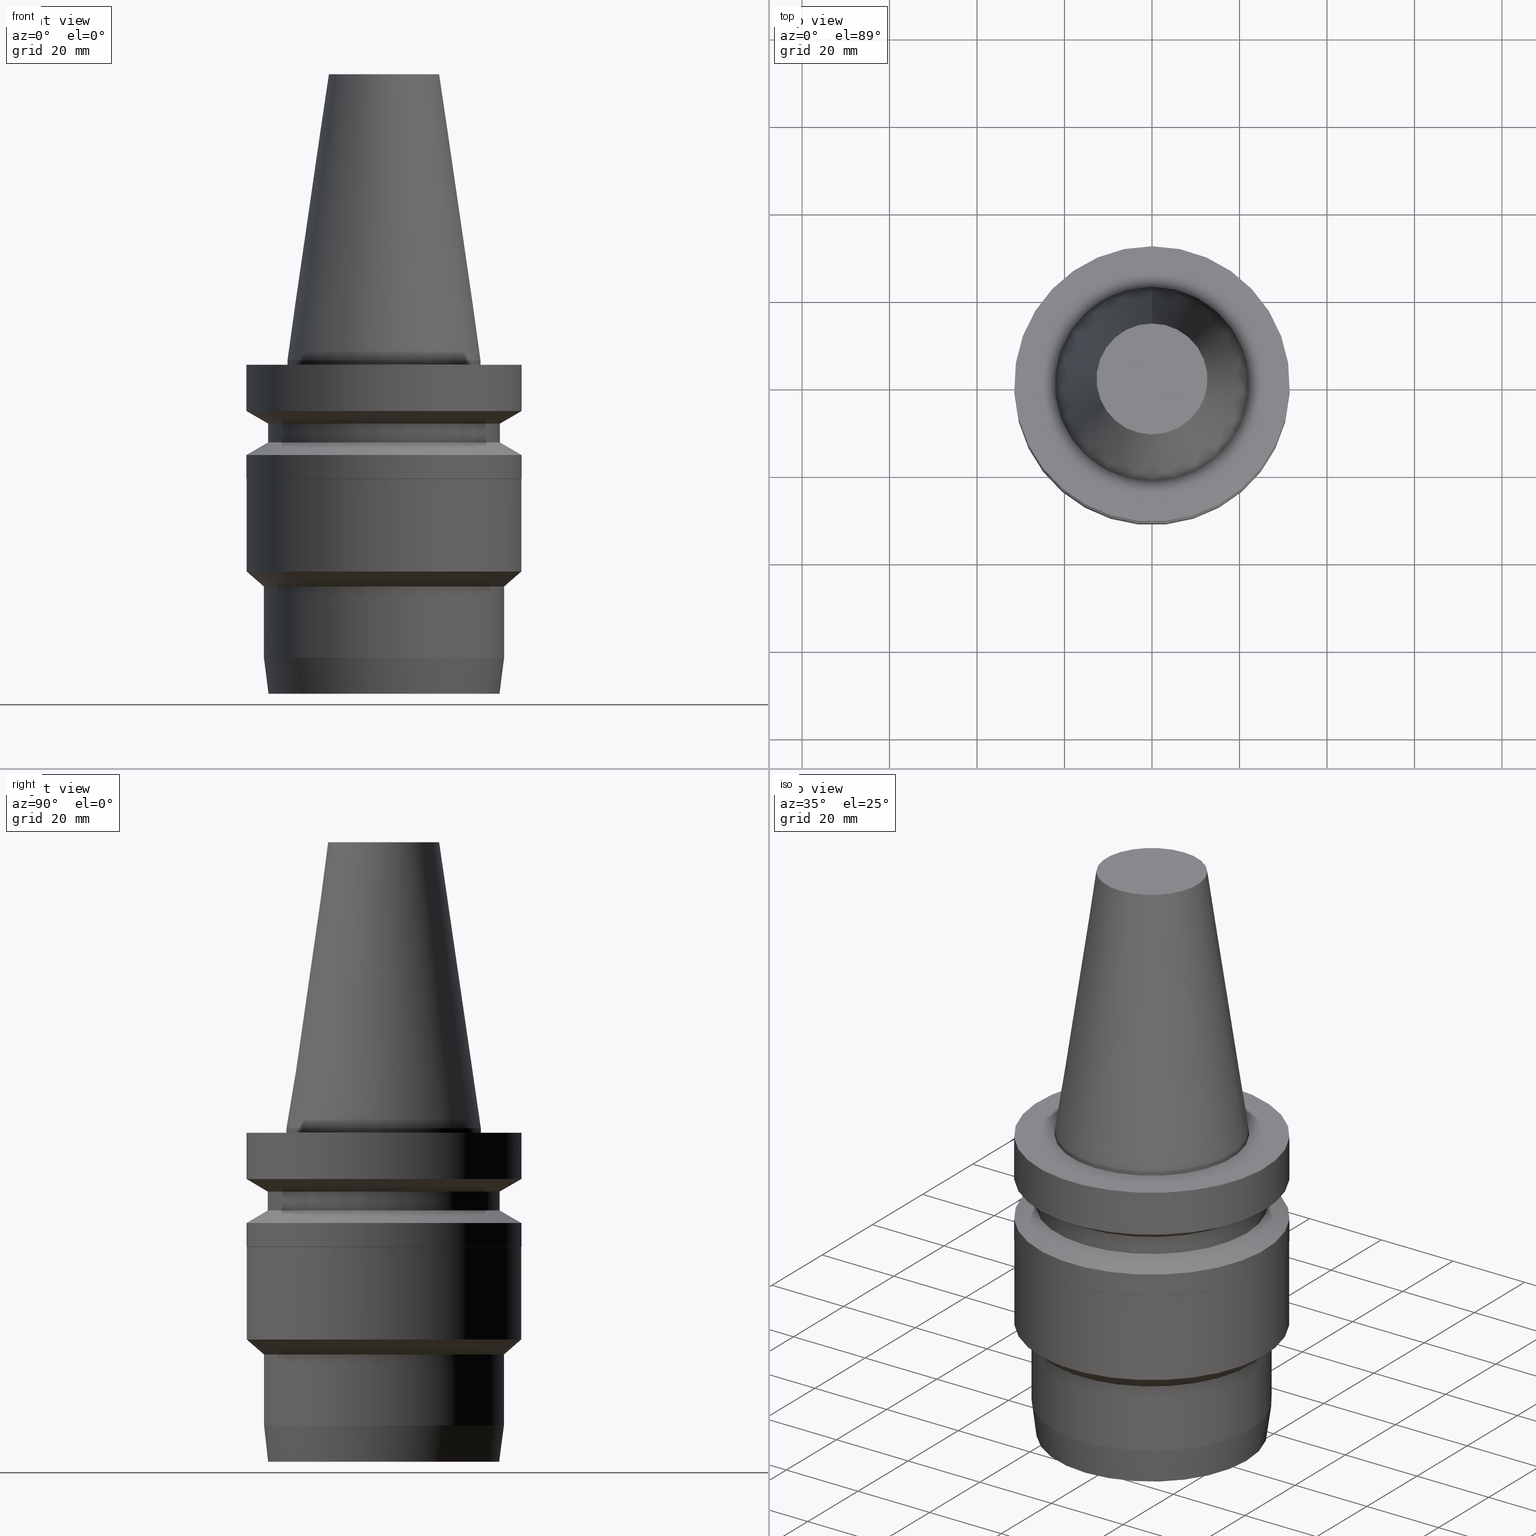
[diagram: canonical four-view strip — front | top / right | iso, engineering-drawing reading convention]
A machine part, canonical four-view strip (front | top / right | iso — engineering-drawing reading convention). The complete STEP part file that produces these views, byte-faithful:
ISO-10303-21;
HEADER;
FILE_DESCRIPTION((''),'1');
FILE_NAME('V:/90_\X2\53D65F9730C730FC30BF\X0\/00_\X2\6DE18DEF30C730FC30BF\X0\/ALL/BBT-BKUS\X2\FF76FF80FF9BFF78FF9E752852A05DE556F3\X0\201801/BBT40-HDC/BBT40-HDC1.000-3.stp','2018-02-07T05:21:27',(''),(''),'Spatial Interop R21 SP3','Kubotek KeyCreator 2011 V10.0.2 (22737)',' ');
FILE_SCHEMA(('automotive_design'));
ENDSEC;
DATA;
#1=MECHANICAL_DESIGN_GEOMETRIC_PRESENTATION_REPRESENTATION(' ',(#10,#11,#12,#13,#14,#15,#16,#17,#18,#19,#20,#21,#22,#23,#24,#25,#26,#27,#28,#29,#30,#31,#32,#33,#34,#35,#36,#37,#38,#39),#6);
#2=PRODUCT_DEFINITION_CONTEXT('',#40,'design');
#3=APPLICATION_PROTOCOL_DEFINITION('INTERNATIONAL STANDARD','automotive_design',1994,#40);
#4=PRODUCT_CATEGORY_RELATIONSHIP('NONE','NONE',#41,#42);
#5=SHAPE_DEFINITION_REPRESENTATION(#43,#44);
#6= (GEOMETRIC_REPRESENTATION_CONTEXT(3)GLOBAL_UNCERTAINTY_ASSIGNED_CONTEXT((#47))GLOBAL_UNIT_ASSIGNED_CONTEXT((#49,#50,#51))REPRESENTATION_CONTEXT('NONE','WORKSPACE'));
#10=STYLED_ITEM('',(#53,#54),#55);
#11=STYLED_ITEM('',(#56),#57);
#12=STYLED_ITEM('',(#58,#59),#60);
#13=STYLED_ITEM('',(#61),#62);
#14=STYLED_ITEM('',(#63,#64),#65);
#15=STYLED_ITEM('',(#66,#67),#68);
#16=STYLED_ITEM('',(#69,#70),#71);
#17=STYLED_ITEM('',(#72),#73);
#18=STYLED_ITEM('',(#74,#75),#76);
#19=STYLED_ITEM('',(#77,#78),#79);
#20=STYLED_ITEM('',(#80,#81),#82);
#21=STYLED_ITEM('',(#83,#84),#85);
#22=STYLED_ITEM('',(#86),#87);
#23=STYLED_ITEM('',(#88),#89);
#24=STYLED_ITEM('',(#90),#91);
#25=STYLED_ITEM('',(#92,#93),#94);
#26=STYLED_ITEM('',(#95),#96);
#27=STYLED_ITEM('',(#97),#98);
#28=STYLED_ITEM('',(#99),#100);
#29=STYLED_ITEM('',(#101,#102),#103);
#30=STYLED_ITEM('',(#104,#105),#106);
#31=STYLED_ITEM('',(#107),#108);
#32=STYLED_ITEM('',(#109),#110);
#33=STYLED_ITEM('',(#111),#112);
#34=STYLED_ITEM('',(#113),#114);
#35=STYLED_ITEM('',(#115,#116),#117);
#36=STYLED_ITEM('',(#118,#119),#120);
#37=STYLED_ITEM('',(#121,#122),#123);
#38=STYLED_ITEM('',(#124,#125),#126);
#39=STYLED_ITEM('',(#127),#128);
#40=APPLICATION_CONTEXT(' ');
#41=PRODUCT_CATEGORY('part','NONE');
#42=PRODUCT_RELATED_PRODUCT_CATEGORY('detail',' ',(#129));
#43=PRODUCT_DEFINITION_SHAPE('NONE','NONE',#130);
#44=ADVANCED_BREP_SHAPE_REPRESENTATION('Unnamed[1]',(#71,#131),#6);
#47=UNCERTAINTY_MEASURE_WITH_UNIT(LENGTH_MEASURE(1.0E-006),#49,'','');
#49= (CONVERSION_BASED_UNIT('MILLIMETRE',#134)LENGTH_UNIT()NAMED_UNIT(#137));
#50= (NAMED_UNIT(#139)PLANE_ANGLE_UNIT()SI_UNIT($,.RADIAN.));
#51= (NAMED_UNIT(#139)SOLID_ANGLE_UNIT()SI_UNIT($,.STERADIAN.));
#53=PRESENTATION_STYLE_ASSIGNMENT((#145));
#54=PRESENTATION_STYLE_ASSIGNMENT((#146));
#55=ADVANCED_FACE('Unnamed[1]',(#147,#148),#149,.T.);
#56=PRESENTATION_STYLE_ASSIGNMENT((#150));
#57=EDGE_CURVE('Unnamed[1]',#151,#151,#152,.T.);
#58=PRESENTATION_STYLE_ASSIGNMENT((#153));
#59=PRESENTATION_STYLE_ASSIGNMENT((#154));
#60=ADVANCED_FACE('Unnamed[1]',(#155,#156),#157,.T.);
#61=PRESENTATION_STYLE_ASSIGNMENT((#158));
#62=EDGE_CURVE('Unnamed[1]',#159,#159,#160,.T.);
#63=PRESENTATION_STYLE_ASSIGNMENT((#161));
#64=PRESENTATION_STYLE_ASSIGNMENT((#162));
#65=ADVANCED_FACE('Unnamed[1]',(#163,#164),#165,.T.);
#66=PRESENTATION_STYLE_ASSIGNMENT((#166));
#67=PRESENTATION_STYLE_ASSIGNMENT((#167));
#68=ADVANCED_FACE('Unnamed[1]',(#168,#169),#170,.T.);
#69=PRESENTATION_STYLE_ASSIGNMENT((#171));
#70=PRESENTATION_STYLE_ASSIGNMENT((#172));
#71=MANIFOLD_SOLID_BREP('Unnamed[1]',#173);
#72=PRESENTATION_STYLE_ASSIGNMENT((#174));
#73=EDGE_CURVE('Unnamed[1]',#175,#175,#176,.T.);
#74=PRESENTATION_STYLE_ASSIGNMENT((#177));
#75=PRESENTATION_STYLE_ASSIGNMENT((#178));
#76=ADVANCED_FACE('Unnamed[1]',(#179),#180,.T.);
#77=PRESENTATION_STYLE_ASSIGNMENT((#181));
#78=PRESENTATION_STYLE_ASSIGNMENT((#182));
#79=ADVANCED_FACE('Unnamed[1]',(#183,#184),#185,.T.);
#80=PRESENTATION_STYLE_ASSIGNMENT((#186));
#81=PRESENTATION_STYLE_ASSIGNMENT((#187));
#82=ADVANCED_FACE('Unnamed[1]',(#188,#189),#190,.T.);
#83=PRESENTATION_STYLE_ASSIGNMENT((#191));
#84=PRESENTATION_STYLE_ASSIGNMENT((#192));
#85=ADVANCED_FACE('Unnamed[1]',(#193,#194),#195,.T.);
#86=PRESENTATION_STYLE_ASSIGNMENT((#196));
#87=EDGE_CURVE('Unnamed[1]',#197,#197,#198,.T.);
#88=PRESENTATION_STYLE_ASSIGNMENT((#199));
#89=EDGE_CURVE('Unnamed[1]',#200,#200,#201,.T.);
#90=PRESENTATION_STYLE_ASSIGNMENT((#202));
#91=EDGE_CURVE('Unnamed[1]',#203,#203,#204,.T.);
#92=PRESENTATION_STYLE_ASSIGNMENT((#205));
#93=PRESENTATION_STYLE_ASSIGNMENT((#206));
#94=ADVANCED_FACE('Unnamed[1]',(#207,#208),#209,.T.);
#95=PRESENTATION_STYLE_ASSIGNMENT((#210));
#96=EDGE_CURVE('Unnamed[1]',#211,#211,#212,.T.);
#97=PRESENTATION_STYLE_ASSIGNMENT((#213));
#98=EDGE_CURVE('Unnamed[1]',#214,#214,#215,.T.);
#99=PRESENTATION_STYLE_ASSIGNMENT((#216));
#100=EDGE_CURVE('Unnamed[1]',#217,#217,#218,.T.);
#101=PRESENTATION_STYLE_ASSIGNMENT((#219));
#102=PRESENTATION_STYLE_ASSIGNMENT((#220));
#103=ADVANCED_FACE('Unnamed[1]',(#221,#222),#223,.T.);
#104=PRESENTATION_STYLE_ASSIGNMENT((#224));
#105=PRESENTATION_STYLE_ASSIGNMENT((#225));
#106=ADVANCED_FACE('Unnamed[1]',(#226,#227),#228,.T.);
#107=PRESENTATION_STYLE_ASSIGNMENT((#229));
#108=EDGE_CURVE('Unnamed[1]',#230,#230,#231,.T.);
#109=PRESENTATION_STYLE_ASSIGNMENT((#232));
#110=EDGE_CURVE('Unnamed[1]',#233,#233,#234,.T.);
#111=PRESENTATION_STYLE_ASSIGNMENT((#235));
#112=EDGE_CURVE('Unnamed[1]',#236,#236,#237,.T.);
#113=PRESENTATION_STYLE_ASSIGNMENT((#238));
#114=EDGE_CURVE('Unnamed[1]',#239,#239,#240,.T.);
#115=PRESENTATION_STYLE_ASSIGNMENT((#241));
#116=PRESENTATION_STYLE_ASSIGNMENT((#242));
#117=ADVANCED_FACE('Unnamed[1]',(#243,#244),#245,.T.);
#118=PRESENTATION_STYLE_ASSIGNMENT((#246));
#119=PRESENTATION_STYLE_ASSIGNMENT((#247));
#120=ADVANCED_FACE('Unnamed[1]',(#248),#249,.T.);
#121=PRESENTATION_STYLE_ASSIGNMENT((#250));
#122=PRESENTATION_STYLE_ASSIGNMENT((#251));
#123=ADVANCED_FACE('Unnamed[1]',(#252,#253),#254,.T.);
#124=PRESENTATION_STYLE_ASSIGNMENT((#255));
#125=PRESENTATION_STYLE_ASSIGNMENT((#256));
#126=ADVANCED_FACE('Unnamed[1]',(#257,#258),#259,.T.);
#127=PRESENTATION_STYLE_ASSIGNMENT((#260));
#128=EDGE_CURVE('Unnamed[1]',#261,#261,#262,.T.);
#129=PRODUCT('Unnamed[1]','Unnamed[1]','PART-Unnamed[1]-DESC',(#263));
#130=PRODUCT_DEFINITION('NONE','NONE',#264,#2);
#131=AXIS2_PLACEMENT_3D('',#265,#266,#267);
#134=LENGTH_MEASURE_WITH_UNIT(LENGTH_MEASURE(1.0),#268);
#137=DIMENSIONAL_EXPONENTS(1.0,0.0,0.0,0.0,0.0,0.0,0.0);
#139=DIMENSIONAL_EXPONENTS(0.0,0.0,0.0,0.0,0.0,0.0,0.0);
#145=SURFACE_STYLE_USAGE(.BOTH.,#269);
#146=CURVE_STYLE('',#270,POSITIVE_LENGTH_MEASURE(1000.0),#271);
#147=FACE_BOUND('',#272,.T.);
#148=FACE_BOUND('',#273,.T.);
#149=CONICAL_SURFACE('',#274,29.0000000000004,1.04719755119651);
#150=CURVE_STYLE('',#275,POSITIVE_LENGTH_MEASURE(1000.0),#276);
#151=VERTEX_POINT('',#277);
#152=CIRCLE('',#278,26.5);
#153=SURFACE_STYLE_USAGE(.BOTH.,#279);
#154=CURVE_STYLE('',#280,POSITIVE_LENGTH_MEASURE(1000.0),#281);
#155=FACE_BOUND('',#282,.T.);
#156=FACE_BOUND('',#283,.T.);
#157=CONICAL_SURFACE('',#284,31.4749999999866,0.785398163425763);
#158=CURVE_STYLE('',#285,POSITIVE_LENGTH_MEASURE(1000.0),#286);
#159=VERTEX_POINT('',#287);
#160=CIRCLE('',#288,26.4085690956189);
#161=SURFACE_STYLE_USAGE(.BOTH.,#289);
#162=CURVE_STYLE('',#290,POSITIVE_LENGTH_MEASURE(1000.0),#291);
#163=FACE_BOUND('',#292,.T.);
#164=FACE_BOUND('',#293,.T.);
#165=CYLINDRICAL_SURFACE('',#294,22.225);
#166=SURFACE_STYLE_USAGE(.BOTH.,#295);
#167=CURVE_STYLE('',#296,POSITIVE_LENGTH_MEASURE(1000.0),#297);
#168=FACE_BOUND('',#298,.T.);
#169=FACE_BOUND('',#299,.T.);
#170=CONICAL_SURFACE('',#300,17.4562500000001,0.144812498238936);
#171=SURFACE_STYLE_USAGE(.BOTH.,#301);
#172=CURVE_STYLE('',#302,POSITIVE_LENGTH_MEASURE(1000.0),#303);
#173=CLOSED_SHELL('',(#120,#68,#65,#123,#79,#106,#126,#55,#117,#60,#82,#103,#94,#85,#76));
#174=CURVE_STYLE('',#304,POSITIVE_LENGTH_MEASURE(1000.0),#305);
#175=VERTEX_POINT('',#306);
#176=CIRCLE('',#307,31.4499999999729);
#177=SURFACE_STYLE_USAGE(.BOTH.,#308);
#178=CURVE_STYLE('',#309,POSITIVE_LENGTH_MEASURE(1000.0),#310);
#179=FACE_OUTER_BOUND('',#311,.T.);
#180=PLANE('',#312);
#181=SURFACE_STYLE_USAGE(.BOTH.,#313);
#182=CURVE_STYLE('',#314,POSITIVE_LENGTH_MEASURE(1000.0),#315);
#183=FACE_BOUND('',#316,.T.);
#184=FACE_BOUND('',#317,.T.);
#185=CYLINDRICAL_SURFACE('',#318,31.5);
#186=SURFACE_STYLE_USAGE(.BOTH.,#319);
#187=CURVE_STYLE('',#320,POSITIVE_LENGTH_MEASURE(1000.0),#321);
#188=FACE_BOUND('',#322,.T.);
#189=FACE_BOUND('',#323,.T.);
#190=CYLINDRICAL_SURFACE('',#324,31.4499999999873);
#191=SURFACE_STYLE_USAGE(.BOTH.,#325);
#192=CURVE_STYLE('',#326,POSITIVE_LENGTH_MEASURE(1000.0),#327);
#193=FACE_BOUND('',#328,.T.);
#194=FACE_BOUND('',#329,.T.);
#195=CONICAL_SURFACE('',#330,26.9542845478042,0.130899693899131);
#196=CURVE_STYLE('',#331,POSITIVE_LENGTH_MEASURE(1000.0),#332);
#197=VERTEX_POINT('',#333);
#198=CIRCLE('',#334,22.225);
#199=CURVE_STYLE('',#335,POSITIVE_LENGTH_MEASURE(1000.0),#336);
#200=VERTEX_POINT('',#337);
#201=CIRCLE('',#338,31.4999999999997);
#202=CURVE_STYLE('',#339,POSITIVE_LENGTH_MEASURE(1000.0),#340);
#203=VERTEX_POINT('',#341);
#204=CIRCLE('',#342,26.4999999999994);
#205=SURFACE_STYLE_USAGE(.BOTH.,#343);
#206=CURVE_STYLE('',#344,POSITIVE_LENGTH_MEASURE(1000.0),#345);
#207=FACE_BOUND('',#346,.T.);
#208=FACE_BOUND('',#347,.T.);
#209=CYLINDRICAL_SURFACE('',#348,27.4999999999893);
#210=CURVE_STYLE('',#349,POSITIVE_LENGTH_MEASURE(1000.0),#350);
#211=VERTEX_POINT('',#351);
#212=CIRCLE('',#352,31.5000000000004);
#213=CURVE_STYLE('',#353,POSITIVE_LENGTH_MEASURE(1000.0),#354);
#214=VERTEX_POINT('',#355);
#215=CIRCLE('',#356,31.5000000000004);
#216=CURVE_STYLE('',#357,POSITIVE_LENGTH_MEASURE(1000.0),#358);
#217=VERTEX_POINT('',#359);
#218=CIRCLE('',#360,27.4999999999892);
#219=SURFACE_STYLE_USAGE(.BOTH.,#361);
#220=CURVE_STYLE('',#362,POSITIVE_LENGTH_MEASURE(1000.0),#363);
#221=FACE_BOUND('',#364,.T.);
#222=FACE_BOUND('',#365,.T.);
#223=CONICAL_SURFACE('',#366,29.4749999999954,0.854987653870736);
#224=SURFACE_STYLE_USAGE(.BOTH.,#367);
#225=CURVE_STYLE('',#368,POSITIVE_LENGTH_MEASURE(1000.0),#369);
#226=FACE_BOUND('',#370,.T.);
#227=FACE_BOUND('',#371,.T.);
#228=CONICAL_SURFACE('',#372,28.9999999999999,1.04719755119657);
#229=CURVE_STYLE('',#373,POSITIVE_LENGTH_MEASURE(1000.0),#374);
#230=VERTEX_POINT('',#375);
#231=CIRCLE('',#376,31.5000000000007);
#232=CURVE_STYLE('',#377,POSITIVE_LENGTH_MEASURE(1000.0),#378);
#233=VERTEX_POINT('',#379);
#234=CIRCLE('',#380,12.6875000000001);
#235=CURVE_STYLE('',#381,POSITIVE_LENGTH_MEASURE(1000.0),#382);
#236=VERTEX_POINT('',#383);
#237=CIRCLE('',#384,22.225);
#238=CURVE_STYLE('',#385,POSITIVE_LENGTH_MEASURE(1000.0),#386);
#239=VERTEX_POINT('',#387);
#240=CIRCLE('',#388,31.4500000000017);
#241=SURFACE_STYLE_USAGE(.BOTH.,#389);
#242=CURVE_STYLE('',#390,POSITIVE_LENGTH_MEASURE(1000.0),#391);
#243=FACE_BOUND('',#392,.T.);
#244=FACE_BOUND('',#393,.T.);
#245=CYLINDRICAL_SURFACE('',#394,31.5000000000005);
#246=SURFACE_STYLE_USAGE(.BOTH.,#395);
#247=CURVE_STYLE('',#396,POSITIVE_LENGTH_MEASURE(1000.0),#397);
#248=FACE_OUTER_BOUND('',#398,.T.);
#249=PLANE('',#399);
#250=SURFACE_STYLE_USAGE(.BOTH.,#400);
#251=CURVE_STYLE('',#401,POSITIVE_LENGTH_MEASURE(1000.0),#402);
#252=FACE_OUTER_BOUND('',#403,.T.);
#253=FACE_BOUND('',#404,.T.);
#254=PLANE('',#405);
#255=SURFACE_STYLE_USAGE(.BOTH.,#406);
#256=CURVE_STYLE('',#407,POSITIVE_LENGTH_MEASURE(1000.0),#408);
#257=FACE_BOUND('',#409,.T.);
#258=FACE_BOUND('',#410,.T.);
#259=CYLINDRICAL_SURFACE('',#411,26.4999999999997);
#260=CURVE_STYLE('',#412,POSITIVE_LENGTH_MEASURE(1000.0),#413);
#261=VERTEX_POINT('',#414);
#262=CIRCLE('',#415,27.4999999999895);
#263=PRODUCT_CONTEXT('',#40,'mechanical');
#264=PRODUCT_DEFINITION_FORMATION_WITH_SPECIFIED_SOURCE(' ','NONE',#129,.NOT_KNOWN.);
#265=CARTESIAN_POINT('',(0.0,0.0,0.0));
#266=DIRECTION('',(0.0,0.0,1.0));
#267=DIRECTION('',(1.0,0.0,0.0));
#268= (NAMED_UNIT(#137)LENGTH_UNIT()SI_UNIT(.MILLI.,.METRE.));
#269=SURFACE_SIDE_STYLE('',(#417));
#270=DRAUGHTING_PRE_DEFINED_CURVE_FONT('continuous');
#271=COLOUR_RGB('',0.0,1.0,0.0);
#272=EDGE_LOOP('',(#418));
#273=EDGE_LOOP('',(#419));
#274=AXIS2_PLACEMENT_3D('',#420,#421,#422);
#275=DRAUGHTING_PRE_DEFINED_CURVE_FONT('continuous');
#276=COLOUR_RGB('',0.0,1.0,0.0);
#277=CARTESIAN_POINT('',(1.1479681728942E-015,26.5,-18.7477430013855));
#278=AXIS2_PLACEMENT_3D('',#423,#424,#425);
#279=SURFACE_SIDE_STYLE('',(#426));
#280=DRAUGHTING_PRE_DEFINED_CURVE_FONT('continuous');
#281=COLOUR_RGB('',0.0,1.0,0.0);
#282=EDGE_LOOP('',(#427));
#283=EDGE_LOOP('',(#428));
#284=AXIS2_PLACEMENT_3D('',#429,#430,#431);
#285=DRAUGHTING_PRE_DEFINED_CURVE_FONT('continuous');
#286=COLOUR_RGB('',0.0,1.0,0.0);
#287=CARTESIAN_POINT('',(4.66590430475143E-015,26.4085690956189,-76.2000000000003));
#288=AXIS2_PLACEMENT_3D('',#432,#433,#434);
#289=SURFACE_SIDE_STYLE('',(#435));
#290=DRAUGHTING_PRE_DEFINED_CURVE_FONT('continuous');
#291=COLOUR_RGB('',0.0,1.0,0.0);
#292=EDGE_LOOP('',(#436));
#293=EDGE_LOOP('',(#437));
#294=AXIS2_PLACEMENT_3D('',#438,#439,#440);
#295=SURFACE_SIDE_STYLE('',(#441));
#296=DRAUGHTING_PRE_DEFINED_CURVE_FONT('continuous');
#297=COLOUR_RGB('',0.0,1.0,0.0);
#298=EDGE_LOOP('',(#442));
#299=EDGE_LOOP('',(#443));
#300=AXIS2_PLACEMENT_3D('',#444,#445,#446);
#301=SURFACE_SIDE_STYLE('',(#447));
#302=DRAUGHTING_PRE_DEFINED_CURVE_FONT('continuous');
#303=COLOUR_RGB('',0.0,1.0,0.0);
#304=DRAUGHTING_PRE_DEFINED_CURVE_FONT('continuous');
#305=COLOUR_RGB('',0.0,1.0,0.0);
#306=CARTESIAN_POINT('',(1.65633479584536E-015,31.4499999999729,-27.0499999999765));
#307=AXIS2_PLACEMENT_3D('',#448,#449,#450);
#308=SURFACE_SIDE_STYLE('',(#451));
#309=DRAUGHTING_PRE_DEFINED_CURVE_FONT('continuous');
#310=COLOUR_RGB('',0.0,1.0,0.0);
#311=EDGE_LOOP('',(#452));
#312=AXIS2_PLACEMENT_3D('',#453,#454,#455);
#313=SURFACE_SIDE_STYLE('',(#456));
#314=DRAUGHTING_PRE_DEFINED_CURVE_FONT('continuous');
#315=COLOUR_RGB('',0.0,1.0,0.0);
#316=EDGE_LOOP('',(#457));
#317=EDGE_LOOP('',(#458));
#318=AXIS2_PLACEMENT_3D('',#459,#460,#461);
#319=SURFACE_SIDE_STYLE('',(#462));
#320=DRAUGHTING_PRE_DEFINED_CURVE_FONT('continuous');
#321=COLOUR_RGB('',0.0,1.0,0.0);
#322=EDGE_LOOP('',(#463));
#323=EDGE_LOOP('',(#464));
#324=AXIS2_PLACEMENT_3D('',#465,#466,#467);
#325=SURFACE_SIDE_STYLE('',(#468));
#326=DRAUGHTING_PRE_DEFINED_CURVE_FONT('continuous');
#327=COLOUR_RGB('',0.0,1.0,0.0);
#328=EDGE_LOOP('',(#469));
#329=EDGE_LOOP('',(#470));
#330=AXIS2_PLACEMENT_3D('',#471,#472,#473);
#331=DRAUGHTING_PRE_DEFINED_CURVE_FONT('continuous');
#332=COLOUR_RGB('',0.0,1.0,0.0);
#333=CARTESIAN_POINT('',(6.12323399573622E-017,22.2250000000001,-0.999999999999912));
#334=AXIS2_PLACEMENT_3D('',#474,#475,#476);
#335=DRAUGHTING_PRE_DEFINED_CURVE_FONT('continuous');
#336=COLOUR_RGB('',0.0,1.0,0.0);
#337=CARTESIAN_POINT('',(6.12323399573568E-017,31.4999999999997,-0.999999999999825));
#338=AXIS2_PLACEMENT_3D('',#477,#478,#479);
#339=DRAUGHTING_PRE_DEFINED_CURVE_FONT('continuous');
#340=COLOUR_RGB('',0.0,1.0,0.0);
#341=CARTESIAN_POINT('',(8.8494551369045E-016,26.4999999999995,-14.4522569986152));
#342=AXIS2_PLACEMENT_3D('',#480,#481,#482);
#343=SURFACE_SIDE_STYLE('',(#483));
#344=DRAUGHTING_PRE_DEFINED_CURVE_FONT('continuous');
#345=COLOUR_RGB('',0.0,1.0,0.0);
#346=EDGE_LOOP('',(#484));
#347=EDGE_LOOP('',(#485));
#348=AXIS2_PLACEMENT_3D('',#486,#487,#488);
#349=DRAUGHTING_PRE_DEFINED_CURVE_FONT('continuous');
#350=COLOUR_RGB('',0.0,1.0,0.0);
#351=CARTESIAN_POINT('',(1.65327317884598E-015,31.5000000000004,-26.9999999999519));
#352=AXIS2_PLACEMENT_3D('',#489,#490,#491);
#353=DRAUGHTING_PRE_DEFINED_CURVE_FONT('continuous');
#354=COLOUR_RGB('',0.0,1.0,0.0);
#355=CARTESIAN_POINT('',(7.08182973902924E-016,31.5000000000004,-11.5655056526664));
#356=AXIS2_PLACEMENT_3D('',#492,#493,#494);
#357=DRAUGHTING_PRE_DEFINED_CURVE_FONT('continuous');
#358=COLOUR_RGB('',0.0,1.0,0.0);
#359=CARTESIAN_POINT('',(3.16527234737427E-015,27.4999999999892,-51.6928203230197));
#360=AXIS2_PLACEMENT_3D('',#495,#496,#497);
#361=SURFACE_SIDE_STYLE('',(#498));
#362=DRAUGHTING_PRE_DEFINED_CURVE_FONT('continuous');
#363=COLOUR_RGB('',0.0,1.0,0.0);
#364=EDGE_LOOP('',(#499));
#365=EDGE_LOOP('',(#500));
#366=AXIS2_PLACEMENT_3D('',#501,#502,#503);
#367=SURFACE_SIDE_STYLE('',(#504));
#368=DRAUGHTING_PRE_DEFINED_CURVE_FONT('continuous');
#369=COLOUR_RGB('',0.0,1.0,0.0);
#370=EDGE_LOOP('',(#505));
#371=EDGE_LOOP('',(#506));
#372=AXIS2_PLACEMENT_3D('',#507,#508,#509);
#373=DRAUGHTING_PRE_DEFINED_CURVE_FONT('continuous');
#374=COLOUR_RGB('',0.0,1.0,0.0);
#375=CARTESIAN_POINT('',(1.32473071268174E-015,31.5000000000007,-21.6344943473346));
#376=AXIS2_PLACEMENT_3D('',#510,#511,#512);
#377=DRAUGHTING_PRE_DEFINED_CURVE_FONT('continuous');
#378=COLOUR_RGB('',0.0,1.0,0.0);
#379=CARTESIAN_POINT('',(-4.00459503321185E-015,12.6875000000002,65.4000000000001));
#380=AXIS2_PLACEMENT_3D('',#513,#514,#515);
#381=DRAUGHTING_PRE_DEFINED_CURVE_FONT('continuous');
#382=COLOUR_RGB('',0.0,1.0,0.0);
#383=CARTESIAN_POINT('',(1.71319921032766E-029,22.2250000000001,-2.8153873565375E-013));
#384=AXIS2_PLACEMENT_3D('',#516,#517,#518);
#385=DRAUGHTING_PRE_DEFINED_CURVE_FONT('continuous');
#386=COLOUR_RGB('',0.0,1.0,0.0);
#387=CARTESIAN_POINT('',(2.95492492502778E-015,31.4500000000017,-48.2575862213516));
#388=AXIS2_PLACEMENT_3D('',#519,#520,#521);
#389=SURFACE_SIDE_STYLE('',(#522));
#390=DRAUGHTING_PRE_DEFINED_CURVE_FONT('continuous');
#391=COLOUR_RGB('',0.0,1.0,0.0);
#392=EDGE_LOOP('',(#523));
#393=EDGE_LOOP('',(#524));
#394=AXIS2_PLACEMENT_3D('',#525,#526,#527);
#395=SURFACE_SIDE_STYLE('',(#528));
#396=DRAUGHTING_PRE_DEFINED_CURVE_FONT('continuous');
#397=COLOUR_RGB('',0.0,1.0,0.0);
#398=EDGE_LOOP('',(#529));
#399=AXIS2_PLACEMENT_3D('',#530,#531,#532);
#400=SURFACE_SIDE_STYLE('',(#533));
#401=DRAUGHTING_PRE_DEFINED_CURVE_FONT('continuous');
#402=COLOUR_RGB('',0.0,1.0,0.0);
#403=EDGE_LOOP('',(#534));
#404=EDGE_LOOP('',(#535));
#405=AXIS2_PLACEMENT_3D('',#536,#537,#538);
#406=SURFACE_SIDE_STYLE('',(#539));
#407=DRAUGHTING_PRE_DEFINED_CURVE_FONT('continuous');
#408=COLOUR_RGB('',0.0,1.0,0.0);
#409=EDGE_LOOP('',(#540));
#410=EDGE_LOOP('',(#541));
#411=AXIS2_PLACEMENT_3D('',#542,#543,#544);
#412=DRAUGHTING_PRE_DEFINED_CURVE_FONT('continuous');
#413=COLOUR_RGB('',0.0,1.0,0.0);
#414=CARTESIAN_POINT('',(4.15827346294183E-015,27.4999999999895,-67.9097592193436));
#415=AXIS2_PLACEMENT_3D('',#545,#546,#547);
#417=SURFACE_STYLE_FILL_AREA(#548);
#418=ORIENTED_EDGE('',*,*,#108,.F.);
#419=ORIENTED_EDGE('',*,*,#57,.T.);
#420=CARTESIAN_POINT('',(1.23634944278797E-015,1.97640727653256E-014,-20.1911186743601));
#421=DIRECTION('',(6.12323399573677E-017,-6.62934875621734E-016,-1.0));
#422=DIRECTION('',(3.57659009428973E-032,1.0,-6.62934875621734E-016));
#423=CARTESIAN_POINT('',(1.1479681728942E-015,2.07209368375645E-014,-18.7477430013855));
#424=DIRECTION('',(6.12323399573677E-017,-6.62934875621774E-016,-1.0));
#425=DIRECTION('',(3.57659009429021E-032,1.0,-6.62934875621774E-016));
#426=SURFACE_STYLE_FILL_AREA(#549);
#427=ORIENTED_EDGE('',*,*,#73,.F.);
#428=ORIENTED_EDGE('',*,*,#96,.T.);
#429=CARTESIAN_POINT('',(1.65480398734567E-015,1.52336544987224E-014,-27.0249999999642));
#430=DIRECTION('',(-6.12323399573677E-017,6.62934875621772E-016,1.0));
#431=DIRECTION('',(3.57659009428965E-032,1.0,-6.62934875621772E-016));
#432=CARTESIAN_POINT('',(4.66590430475143E-015,-1.73661680100015E-014,-76.2000000000003));
#433=DIRECTION('',(6.12323399573677E-017,-6.62934875621782E-016,-1.0));
#434=DIRECTION('',(3.57659009428982E-032,1.0,-6.62934875621782E-016));
#435=SURFACE_STYLE_FILL_AREA(#550);
#436=ORIENTED_EDGE('',*,*,#87,.F.);
#437=ORIENTED_EDGE('',*,*,#112,.T.);
#438=CARTESIAN_POINT('',(3.06161699786891E-017,3.28180020745657E-014,-0.500000000000085));
#439=DIRECTION('',(6.12323399573676E-017,-6.62934875621754E-016,-1.0));
#440=DIRECTION('',(3.57659009428984E-032,1.0,-6.62934875621754E-016));
#441=SURFACE_STYLE_FILL_AREA(#551);
#442=ORIENTED_EDGE('',*,*,#112,.F.);
#443=ORIENTED_EDGE('',*,*,#110,.T.);
#444=CARTESIAN_POINT('',(-2.00229751660592E-015,5.48274399452081E-014,32.6999999999999));
#445=DIRECTION('',(6.12323399573677E-017,-6.62934875621774E-016,-1.0));
#446=DIRECTION('',(3.57659009428939E-032,1.0,-6.62934875621773E-016));
#447=SURFACE_STYLE_FILL_AREA(#552);
#448=CARTESIAN_POINT('',(1.65633479584536E-015,1.52170811268237E-014,-27.0499999999765));
#449=DIRECTION('',(6.12323399573676E-017,-6.62934875621734E-016,-1.0));
#450=DIRECTION('',(3.57659009429022E-032,1.0,-6.62934875621734E-016));
#451=SURFACE_STYLE_FILL_AREA(#553);
#452=ORIENTED_EDGE('',*,*,#62,.T.);
#453=CARTESIAN_POINT('',(4.66590430475143E-015,13.2042845478094,-76.2000000000003));
#454=DIRECTION('',(6.12323399573677E-017,1.22464679914735E-016,-1.0));
#455=DIRECTION('',(-1.23259516440783E-032,1.0,1.22464679914735E-016));
#456=SURFACE_STYLE_FILL_AREA(#554);
#457=ORIENTED_EDGE('',*,*,#98,.F.);
#458=ORIENTED_EDGE('',*,*,#89,.T.);
#459=CARTESIAN_POINT('',(3.84707656930139E-016,2.89844135488893E-014,-6.28275282633307));
#460=DIRECTION('',(6.12323399573677E-017,-6.62934875621765E-016,-1.0));
#461=DIRECTION('',(3.57659009428968E-032,1.0,-6.62934875621765E-016));
#462=SURFACE_STYLE_FILL_AREA(#555);
#463=ORIENTED_EDGE('',*,*,#114,.F.);
#464=ORIENTED_EDGE('',*,*,#73,.T.);
#465=CARTESIAN_POINT('',(2.30562986043657E-015,8.18745685987115E-015,-37.6537931106641));
#466=DIRECTION('',(6.12323399573677E-017,-6.62934875621739E-016,-1.0));
#467=DIRECTION('',(3.57659009428973E-032,1.0,-6.62934875621739E-016));
#468=SURFACE_STYLE_FILL_AREA(#556);
#469=ORIENTED_EDGE('',*,*,#62,.F.);
#470=ORIENTED_EDGE('',*,*,#128,.T.);
#471=CARTESIAN_POINT('',(4.41208888384663E-015,-1.4618223139602E-014,-72.0548796096719));
#472=DIRECTION('',(-6.12323399573677E-017,6.62934875621745E-016,1.0));
#473=DIRECTION('',(3.57659009428959E-032,1.0,-6.62934875621745E-016));
#474=CARTESIAN_POINT('',(6.12323399573616E-017,3.2486534636755E-014,-0.999999999999901));
#475=DIRECTION('',(6.12323399573676E-017,-6.62934875621754E-016,-1.0));
#476=DIRECTION('',(3.57659009428984E-032,1.0,-6.62934875621754E-016));
#477=CARTESIAN_POINT('',(6.12323399573555E-017,3.2486534636755E-014,-0.999999999999801));
#478=DIRECTION('',(6.12323399573677E-017,-6.62934875621773E-016,-1.0));
#479=DIRECTION('',(3.57659009428972E-032,1.0,-6.62934875621773E-016));
#480=CARTESIAN_POINT('',(8.84945513690449E-016,2.3568564316546E-014,-14.4522569986152));
#481=DIRECTION('',(6.12323399573677E-017,-6.62934875621788E-016,-1.0));
#482=DIRECTION('',(3.57659009428995E-032,1.0,-6.62934875621788E-016));
#483=SURFACE_STYLE_FILL_AREA(#557);
#484=ORIENTED_EDGE('',*,*,#128,.F.);
#485=ORIENTED_EDGE('',*,*,#100,.T.);
#486=CARTESIAN_POINT('',(3.66177290515805E-015,-6.49489108410238E-015,-59.8012897711816));
#487=DIRECTION('',(6.12323399573677E-017,-6.62934875621771E-016,-1.0));
#488=DIRECTION('',(3.57659009428972E-032,1.0,-6.62934875621771E-016));
#489=CARTESIAN_POINT('',(1.65327317884598E-015,1.52502278706211E-014,-26.9999999999519));
#490=DIRECTION('',(6.12323399573676E-017,-6.62934875621758E-016,-1.0));
#491=DIRECTION('',(3.57659009428964E-032,1.0,-6.62934875621758E-016));
#492=CARTESIAN_POINT('',(7.08182973902922E-016,2.54822924610236E-014,-11.5655056526663));
#493=DIRECTION('',(6.12323399573677E-017,-6.62934875621758E-016,-1.0));
#494=DIRECTION('',(3.57659009428964E-032,1.0,-6.62934875621758E-016));
#495=CARTESIAN_POINT('',(3.16527234737427E-015,-1.11950389900233E-015,-51.6928203230197));
#496=DIRECTION('',(6.12323399573677E-017,-6.62934875621775E-016,-1.0));
#497=DIRECTION('',(3.57659009428974E-032,1.0,-6.62934875621775E-016));
#498=SURFACE_STYLE_FILL_AREA(#558);
#499=ORIENTED_EDGE('',*,*,#100,.F.);
#500=ORIENTED_EDGE('',*,*,#114,.T.);
#501=CARTESIAN_POINT('',(3.06009863620102E-015,1.91643469581588E-017,-49.9752032721857));
#502=DIRECTION('',(-6.12323399573676E-017,6.62934875621786E-016,1.0));
#503=DIRECTION('',(3.57659009428993E-032,1.0,-6.62934875621786E-016));
#504=SURFACE_STYLE_FILL_AREA(#559);
#505=ORIENTED_EDGE('',*,*,#91,.F.);
#506=ORIENTED_EDGE('',*,*,#98,.T.);
#507=CARTESIAN_POINT('',(7.96564243796686E-016,2.45254283887848E-014,-13.0088813256408));
#508=DIRECTION('',(-6.12323399573677E-017,6.62934875621744E-016,1.0));
#509=DIRECTION('',(3.57659009428948E-032,1.0,-6.62934875621744E-016));
#510=CARTESIAN_POINT('',(1.32473071268174E-015,1.88072086930868E-014,-21.6344943473346));
#511=DIRECTION('',(6.12323399573677E-017,-6.62934875621751E-016,-1.0));
#512=DIRECTION('',(3.57659009428961E-032,1.0,-6.62934875621751E-016));
#513=CARTESIAN_POINT('',(-4.00459503321185E-015,7.65054103780397E-014,65.4000000000001));
#514=DIRECTION('',(6.12323399573677E-017,-6.62934875621744E-016,-1.0));
#515=DIRECTION('',(3.57659009428965E-032,1.0,-6.62934875621744E-016));
#516=CARTESIAN_POINT('',(1.65331138531142E-029,3.31494695123765E-014,-2.70006239588838E-013));
#517=DIRECTION('',(6.12323399573676E-017,-6.62934875621754E-016,-1.0));
#518=DIRECTION('',(3.57659009428984E-032,1.0,-6.62934875621754E-016));
#519=CARTESIAN_POINT('',(2.95492492502778E-015,1.15783259291865E-015,-48.2575862213516));
#520=DIRECTION('',(6.12323399573676E-017,-6.62934875621744E-016,-1.0));
#521=DIRECTION('',(3.57659009429037E-032,1.0,-6.62934875621744E-016));
#522=SURFACE_STYLE_FILL_AREA(#560);
#523=ORIENTED_EDGE('',*,*,#96,.F.);
#524=ORIENTED_EDGE('',*,*,#108,.T.);
#525=CARTESIAN_POINT('',(1.48900194576386E-015,1.70287182818539E-014,-24.3172471736433));
#526=DIRECTION('',(6.12323399573677E-017,-6.62934875621754E-016,-1.0));
#527=DIRECTION('',(3.57659009428962E-032,1.0,-6.62934875621754E-016));
#528=SURFACE_STYLE_FILL_AREA(#561);
#529=ORIENTED_EDGE('',*,*,#110,.F.);
#530=CARTESIAN_POINT('',(-4.00459503321185E-015,6.34375000000014,65.4000000000001));
#531=DIRECTION('',(-6.12323399573677E-017,9.97602686800683E-016,1.0));
#532=DIRECTION('',(-5.62583941297938E-032,-1.0,9.97602686800683E-016));
#533=SURFACE_STYLE_FILL_AREA(#562);
#534=ORIENTED_EDGE('',*,*,#89,.F.);
#535=ORIENTED_EDGE('',*,*,#87,.T.);
#536=CARTESIAN_POINT('',(6.12323399573595E-017,26.8624999999999,-0.999999999999869));
#537=DIRECTION('',(-6.12323399573677E-017,-9.35138060429241E-015,1.0));
#538=DIRECTION('',(5.77434068963536E-031,-1.0,-9.35138060429241E-015));
#539=SURFACE_STYLE_FILL_AREA(#563);
#540=ORIENTED_EDGE('',*,*,#57,.F.);
#541=ORIENTED_EDGE('',*,*,#91,.T.);
#542=CARTESIAN_POINT('',(1.01645684329232E-015,2.21447505770553E-014,-16.6000000000003));
#543=DIRECTION('',(6.12323399573677E-017,-6.62934875621781E-016,-1.0));
#544=DIRECTION('',(3.57659009429025E-032,1.0,-6.62934875621781E-016));
#545=CARTESIAN_POINT('',(4.15827346294183E-015,-1.18702782692024E-014,-67.9097592193436));
#546=DIRECTION('',(6.12323399573677E-017,-6.62934875621768E-016,-1.0));
#547=DIRECTION('',(3.5765900942897E-032,1.0,-6.62934875621768E-016));
#548=FILL_AREA_STYLE('',(#564));
#549=FILL_AREA_STYLE('',(#565));
#550=FILL_AREA_STYLE('',(#566));
#551=FILL_AREA_STYLE('',(#567));
#552=FILL_AREA_STYLE('',(#568));
#553=FILL_AREA_STYLE('',(#569));
#554=FILL_AREA_STYLE('',(#570));
#555=FILL_AREA_STYLE('',(#571));
#556=FILL_AREA_STYLE('',(#572));
#557=FILL_AREA_STYLE('',(#573));
#558=FILL_AREA_STYLE('',(#574));
#559=FILL_AREA_STYLE('',(#575));
#560=FILL_AREA_STYLE('',(#576));
#561=FILL_AREA_STYLE('',(#577));
#562=FILL_AREA_STYLE('',(#578));
#563=FILL_AREA_STYLE('',(#579));
#564=FILL_AREA_STYLE_COLOUR('',#580);
#565=FILL_AREA_STYLE_COLOUR('',#581);
#566=FILL_AREA_STYLE_COLOUR('',#582);
#567=FILL_AREA_STYLE_COLOUR('',#583);
#568=FILL_AREA_STYLE_COLOUR('',#584);
#569=FILL_AREA_STYLE_COLOUR('',#585);
#570=FILL_AREA_STYLE_COLOUR('',#586);
#571=FILL_AREA_STYLE_COLOUR('',#587);
#572=FILL_AREA_STYLE_COLOUR('',#588);
#573=FILL_AREA_STYLE_COLOUR('',#589);
#574=FILL_AREA_STYLE_COLOUR('',#590);
#575=FILL_AREA_STYLE_COLOUR('',#591);
#576=FILL_AREA_STYLE_COLOUR('',#592);
#577=FILL_AREA_STYLE_COLOUR('',#593);
#578=FILL_AREA_STYLE_COLOUR('',#594);
#579=FILL_AREA_STYLE_COLOUR('',#595);
#580=COLOUR_RGB('',0.0,1.0,0.0);
#581=COLOUR_RGB('',0.0,1.0,0.0);
#582=COLOUR_RGB('',0.0,1.0,0.0);
#583=COLOUR_RGB('',0.0,1.0,0.0);
#584=COLOUR_RGB('',0.0,1.0,0.0);
#585=COLOUR_RGB('',0.0,1.0,0.0);
#586=COLOUR_RGB('',0.0,1.0,0.0);
#587=COLOUR_RGB('',0.0,1.0,0.0);
#588=COLOUR_RGB('',0.0,1.0,0.0);
#589=COLOUR_RGB('',0.0,1.0,0.0);
#590=COLOUR_RGB('',0.0,1.0,0.0);
#591=COLOUR_RGB('',0.0,1.0,0.0);
#592=COLOUR_RGB('',0.0,1.0,0.0);
#593=COLOUR_RGB('',0.0,1.0,0.0);
#594=COLOUR_RGB('',0.0,1.0,0.0);
#595=COLOUR_RGB('',0.0,1.0,0.0);
ENDSEC;
END-ISO-10303-21;
